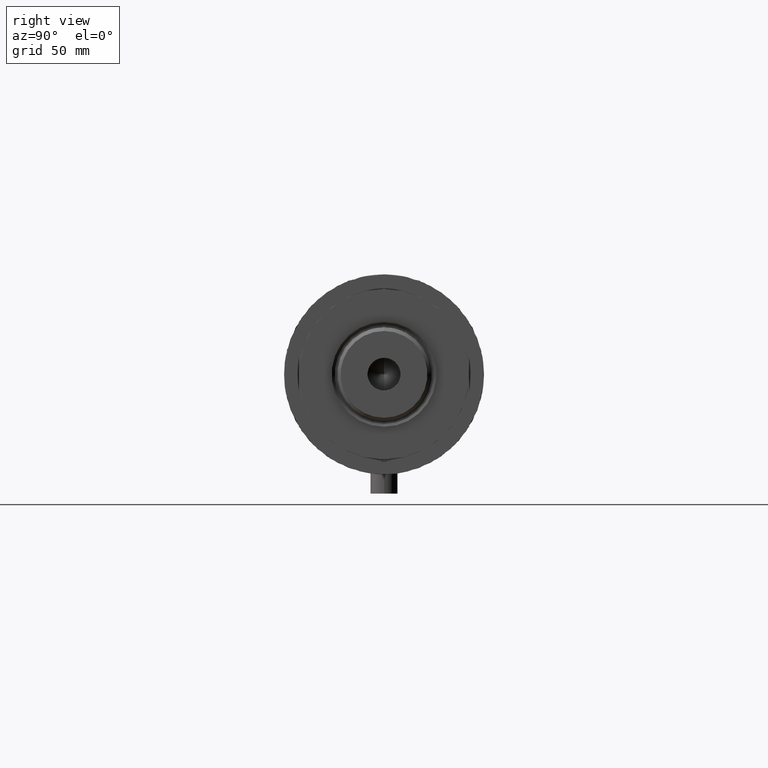
[diagram: clean part render]
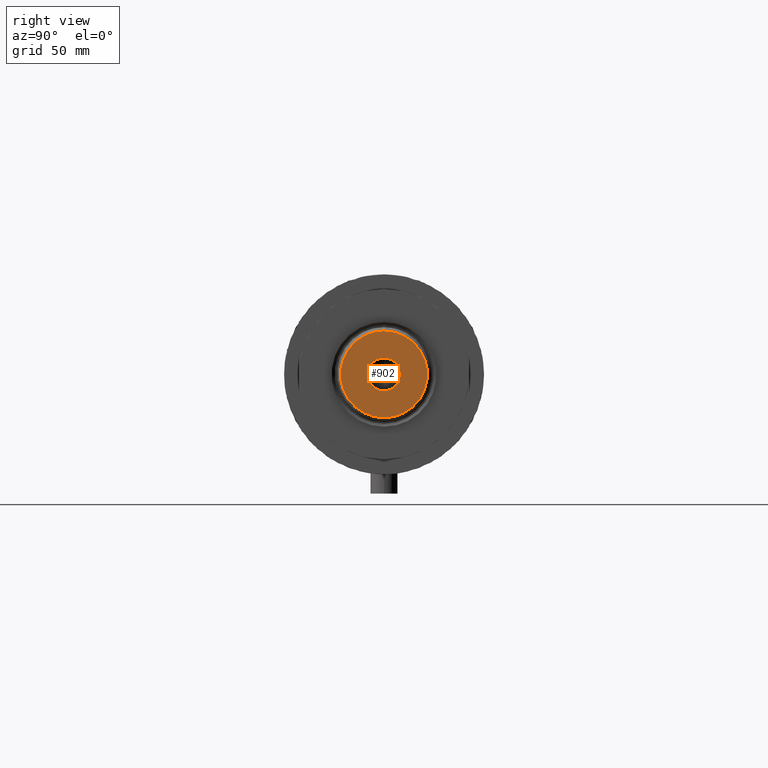
[diagram: same view with one face highlighted and labeled with its STEP entity id]
A machine part, right view. The second image highlights one B-rep face of the part: STEP entity #902.
In plain terms, the highlighted planar face has unit normal (1, 0, -0).
Its self-contained STEP definition (entity closure, byte-faithful):
#109 = AXIS2_PLACEMENT_3D ( 'NONE', #2002, #3754, #3035 ) ;
#245 = AXIS2_PLACEMENT_3D ( 'NONE', #2185, #3277, #1529 ) ;
#275 = DIRECTION ( 'NONE',  ( 1.000000000000000000, 0.000000000000000000, 0.000000000000000000 ) ) ;
#348 = DIRECTION ( 'NONE',  ( 0.000000000000000000, 0.000000000000000000, 1.000000000000000000 ) ) ;
#565 = VERTEX_POINT ( 'NONE', #2896 ) ;
#574 = DIRECTION ( 'NONE',  ( -0.000000000000000000, -0.000000000000000000, 1.000000000000000000 ) ) ;
#704 = DIRECTION ( 'NONE',  ( 1.000000000000000000, 0.000000000000000000, -0.000000000000000000 ) ) ;
#842 = DIRECTION ( 'NONE',  ( 1.000000000000000000, 0.000000000000000000, 0.000000000000000000 ) ) ;
#902 = ADVANCED_FACE ( 'NONE', ( #3888, #2483 ), #3937, .T. ) ;
#1134 = EDGE_CURVE ( 'NONE', #565, #2012, #3914, .T. ) ;
#1174 = AXIS2_PLACEMENT_3D ( 'NONE', #1183, #2603, #842 ) ;
#1183 = CARTESIAN_POINT ( 'NONE',  ( 0.000000000000000000, 0.000000000000000000, 253.3000000000000114 ) ) ;
#1347 = ORIENTED_EDGE ( 'NONE', *, *, #2677, .T. ) ;
#1529 = DIRECTION ( 'NONE',  ( 1.000000000000000000, 0.000000000000000000, 0.000000000000000000 ) ) ;
#1764 = CIRCLE ( 'NONE', #109, 19.10000000000006182 ) ;
#2002 = CARTESIAN_POINT ( 'NONE',  ( 0.000000000000000000, 0.000000000000000000, 253.3000000000000114 ) ) ;
#2012 = VERTEX_POINT ( 'NONE', #2829 ) ;
#2030 = ORIENTED_EDGE ( 'NONE', *, *, #2689, .F. ) ;
#2039 = CARTESIAN_POINT ( 'NONE',  ( 0.000000000000000000, 0.000000000000000000, 253.3000000000000114 ) ) ;
#2051 = EDGE_LOOP ( 'NONE', ( #1347, #2362 ) ) ;
#2091 = VERTEX_POINT ( 'NONE', #2878 ) ;
#2185 = CARTESIAN_POINT ( 'NONE',  ( 0.000000000000000000, 0.000000000000000000, 253.3000000000000114 ) ) ;
#2209 = CIRCLE ( 'NONE', #245, 19.10000000000006182 ) ;
#2362 = ORIENTED_EDGE ( 'NONE', *, *, #2996, .T. ) ;
#2406 = VERTEX_POINT ( 'NONE', #4197 ) ;
#2483 = FACE_BOUND ( 'NONE', #3946, .T. ) ;
#2495 = AXIS2_PLACEMENT_3D ( 'NONE', #2892, #348, #704 ) ;
#2591 = ORIENTED_EDGE ( 'NONE', *, *, #1134, .F. ) ;
#2603 = DIRECTION ( 'NONE',  ( -0.000000000000000000, -0.000000000000000000, 1.000000000000000000 ) ) ;
#2676 = AXIS2_PLACEMENT_3D ( 'NONE', #2039, #574, #275 ) ;
#2677 = EDGE_CURVE ( 'NONE', #2406, #2091, #1764, .T. ) ;
#2689 = EDGE_CURVE ( 'NONE', #2012, #565, #4153, .T. ) ;
#2829 = CARTESIAN_POINT ( 'NONE',  ( 7.249999999999999112, 0.000000000000000000, 253.3000000000000114 ) ) ;
#2878 = CARTESIAN_POINT ( 'NONE',  ( 19.10000000000006182, 2.424800662311762954E-15, 253.3000000000000114 ) ) ;
#2892 = CARTESIAN_POINT ( 'NONE',  ( 0.000000000000000000, 0.000000000000000000, 253.3000000000000114 ) ) ;
#2896 = CARTESIAN_POINT ( 'NONE',  ( -7.249999999999999112, 8.878689293818310074E-16, 253.3000000000000114 ) ) ;
#2996 = EDGE_CURVE ( 'NONE', #2091, #2406, #2209, .T. ) ;
#3035 = DIRECTION ( 'NONE',  ( 1.000000000000000000, 0.000000000000000000, 0.000000000000000000 ) ) ;
#3277 = DIRECTION ( 'NONE',  ( 0.000000000000000000, 0.000000000000000000, 1.000000000000000000 ) ) ;
#3754 = DIRECTION ( 'NONE',  ( 0.000000000000000000, 0.000000000000000000, 1.000000000000000000 ) ) ;
#3888 = FACE_OUTER_BOUND ( 'NONE', #2051, .T. ) ;
#3914 = CIRCLE ( 'NONE', #1174, 7.249999999999999112 ) ;
#3937 = PLANE ( 'NONE',  #2495 ) ;
#3946 = EDGE_LOOP ( 'NONE', ( #2030, #2591 ) ) ;
#4153 = CIRCLE ( 'NONE', #2676, 7.249999999999999112 ) ;
#4197 = CARTESIAN_POINT ( 'NONE',  ( -19.10000000000006182, 0.000000000000000000, 253.3000000000000114 ) ) ;